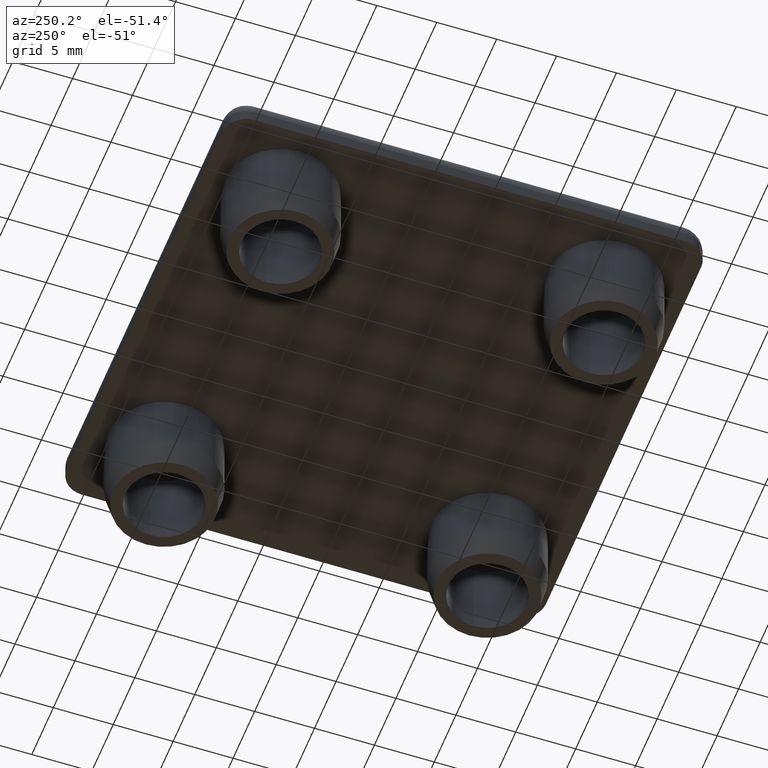
[diagram: clean part render]
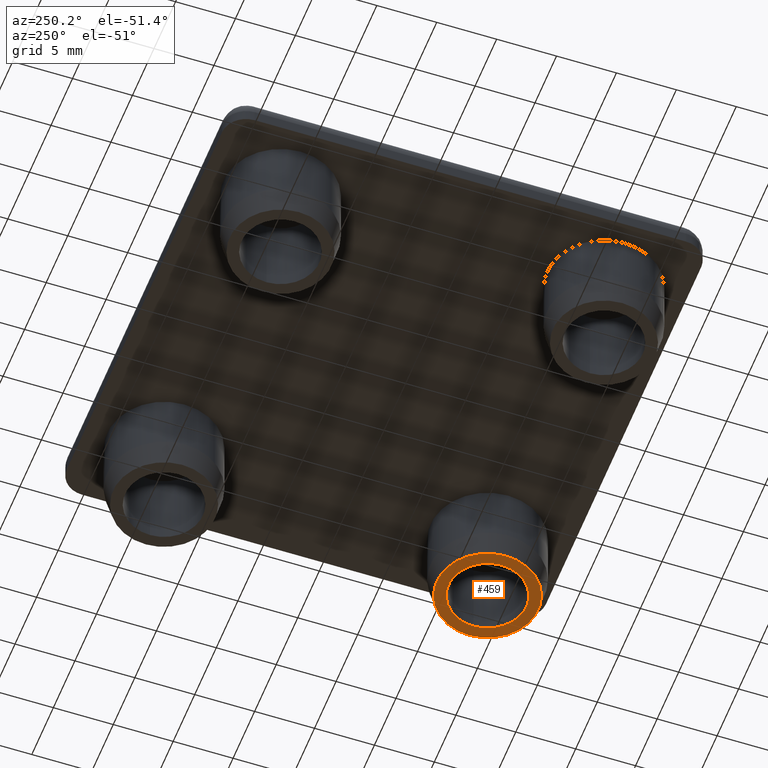
[diagram: same view with one face highlighted and labeled with its STEP entity id]
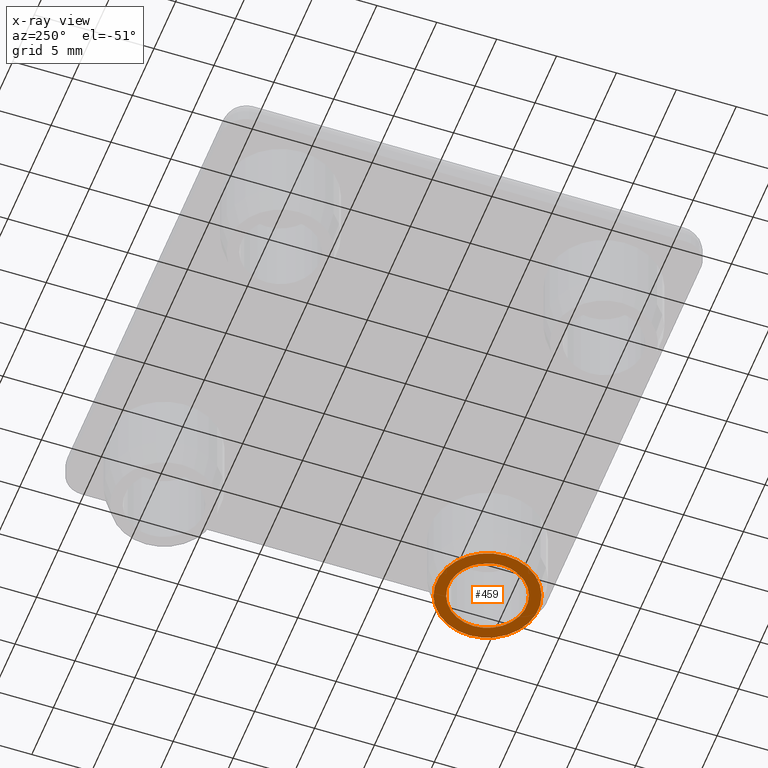
[diagram: x-ray of the same camera — body ghosted, the highlighted face saturated]
A machine part, auxiliary view. The second image highlights one B-rep face of the part: STEP entity #459.
The next image is the same camera in x-ray: the body ghosted, the highlighted face saturated — about 0% of this face is hidden behind the body in this view.
In plain terms, the highlighted planar face has unit normal (0, 0, 1).
Its self-contained STEP definition (entity closure, byte-faithful):
#60=PLANE('',#507);
#95=FACE_BOUND('',#160,.T.);
#115=FACE_OUTER_BOUND('',#159,.T.);
#159=EDGE_LOOP('',(#349));
#160=EDGE_LOOP('',(#350));
#211=CIRCLE('',#504,4.25);
#213=CIRCLE('',#508,3.25);
#247=VERTEX_POINT('',#755);
#249=VERTEX_POINT('',#761);
#287=EDGE_CURVE('',#247,#247,#211,.T.);
#289=EDGE_CURVE('',#249,#249,#213,.T.);
#349=ORIENTED_EDGE('',*,*,#287,.F.);
#350=ORIENTED_EDGE('',*,*,#289,.T.);
#459=ADVANCED_FACE('',(#115,#95),#60,.F.);
#504=AXIS2_PLACEMENT_3D('',#756,#591,#592);
#507=AXIS2_PLACEMENT_3D('',#760,#597,#598);
#508=AXIS2_PLACEMENT_3D('',#762,#599,#600);
#591=DIRECTION('center_axis',(0.,0.,1.));
#592=DIRECTION('ref_axis',(-1.,0.,0.));
#597=DIRECTION('center_axis',(0.,0.,1.));
#598=DIRECTION('ref_axis',(1.,0.,0.));
#599=DIRECTION('center_axis',(0.,0.,1.));
#600=DIRECTION('ref_axis',(-1.,0.,0.));
#755=CARTESIAN_POINT('',(17.75,-13.5,-7.));
#756=CARTESIAN_POINT('Origin',(13.5,-13.5,-7.));
#760=CARTESIAN_POINT('Origin',(13.5,-13.5,-7.));
#761=CARTESIAN_POINT('',(16.75,-13.5,-7.));
#762=CARTESIAN_POINT('Origin',(13.5,-13.5,-7.));